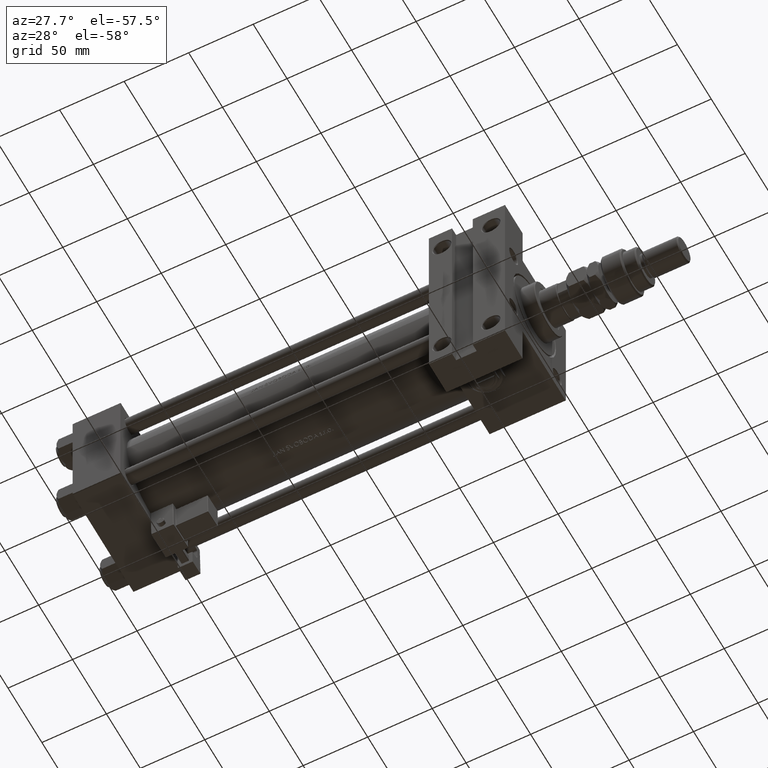
[diagram: clean part render]
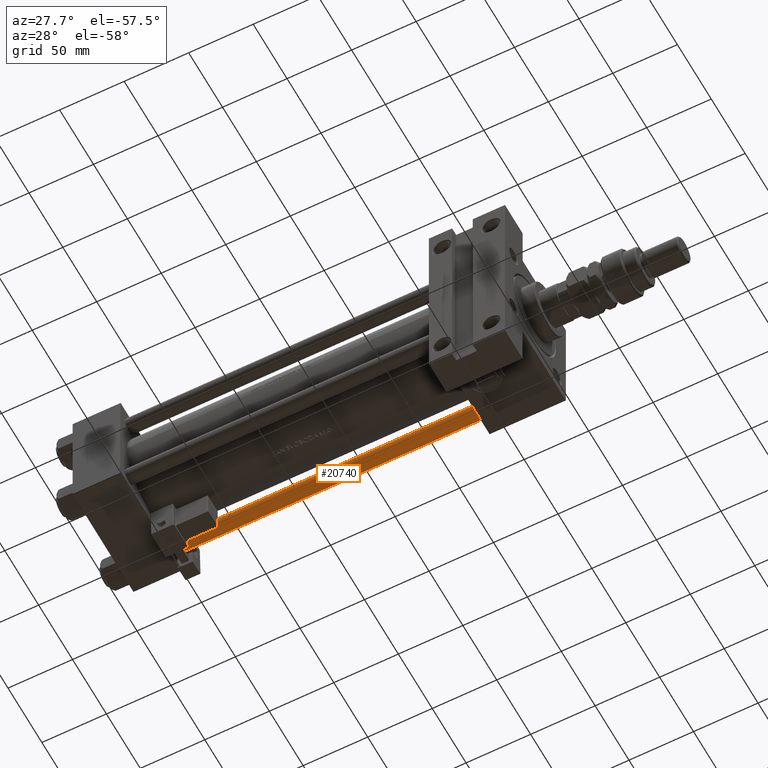
[diagram: same view with one face highlighted and labeled with its STEP entity id]
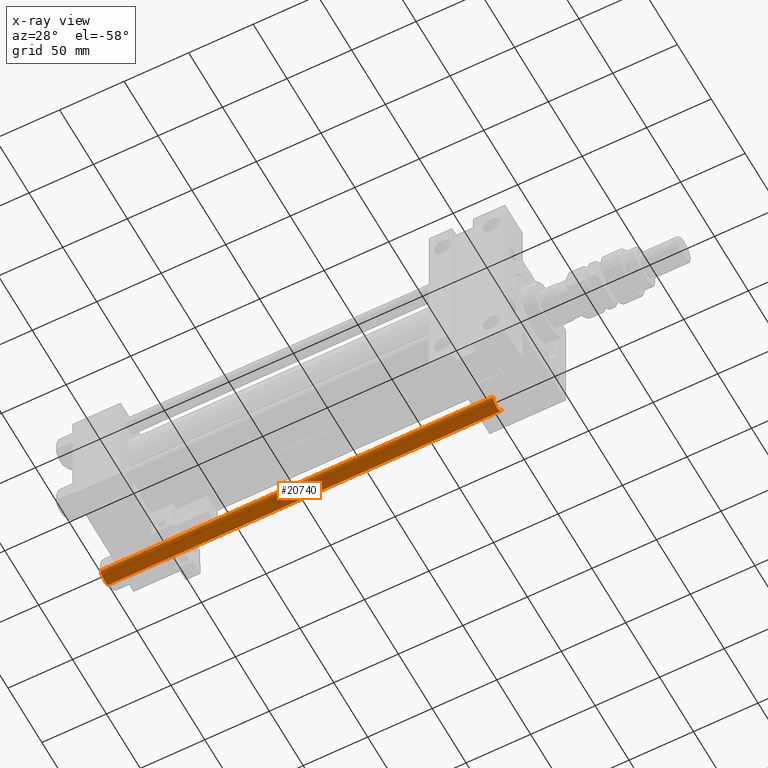
[diagram: x-ray of the same camera — body ghosted, the highlighted face saturated]
A machine part, auxiliary view. The second image highlights one B-rep face of the part: STEP entity #20740.
The next image is the same camera in x-ray: the body ghosted, the highlighted face saturated — about 0% of this face is hidden behind the body in this view.
In plain terms, the highlighted cylindrical surface (edge-blend (fillet) strip) has radius 6 mm, axis along (-1, -0, 0).
Its self-contained STEP definition (entity closure, byte-faithful):
#1722 = LINE ( 'NONE', #40596, #24269 ) ;
#2200 = ORIENTED_EDGE ( 'NONE', *, *, #39909, .T. ) ;
#7067 = VERTEX_POINT ( 'NONE', #46702 ) ;
#8290 = LINE ( 'NONE', #11888, #33200 ) ;
#8333 = FACE_OUTER_BOUND ( 'NONE', #25687, .T. ) ;
#11888 = CARTESIAN_POINT ( 'NONE',  ( 6.000000000000000888, 7.347880794884120722E-16, 305.0000000000000000 ) ) ;
#12722 = CARTESIAN_POINT ( 'NONE',  ( -6.000000000000000888, 0.000000000000000000, 304.5000000000000000 ) ) ;
#13773 = DIRECTION ( 'NONE',  ( -1.000000000000000000, 0.000000000000000000, 0.000000000000000000 ) ) ;
#14417 = VERTEX_POINT ( 'NONE', #33110 ) ;
#18293 = EDGE_CURVE ( 'NONE', #24531, #7067, #1722, .T. ) ;
#20187 = DIRECTION ( 'NONE',  ( -0.000000000000000000, -0.000000000000000000, -1.000000000000000000 ) ) ;
#20740 = ADVANCED_FACE ( 'NONE', ( #8333 ), #25179, .T. ) ;
#22438 = EDGE_CURVE ( 'NONE', #37914, #14417, #8290, .T. ) ;
#23485 = AXIS2_PLACEMENT_3D ( 'NONE', #51491, #34738, #13773 ) ;
#23966 = DIRECTION ( 'NONE',  ( 1.000000000000000000, 0.000000000000000000, 0.000000000000000000 ) ) ;
#24269 = VECTOR ( 'NONE', #52143, 1000.000000000000000 ) ;
#24531 = VERTEX_POINT ( 'NONE', #12722 ) ;
#25179 = CYLINDRICAL_SURFACE ( 'NONE', #23485, 6.000000000000000888 ) ;
#25687 = EDGE_LOOP ( 'NONE', ( #42523, #2200, #43676, #36733 ) ) ;
#27273 = DIRECTION ( 'NONE',  ( -0.000000000000000000, -0.000000000000000000, 1.000000000000000000 ) ) ;
#29643 = EDGE_CURVE ( 'NONE', #7067, #14417, #40584, .T. ) ;
#33110 = CARTESIAN_POINT ( 'NONE',  ( 6.000000000000000888, 7.347880794884120722E-16, 0.5000000000000004441 ) ) ;
#33200 = VECTOR ( 'NONE', #20187, 1000.000000000000000 ) ;
#34657 = CIRCLE ( 'NONE', #36435, 6.000000000000000888 ) ;
#34738 = DIRECTION ( 'NONE',  ( -0.000000000000000000, -0.000000000000000000, -1.000000000000000000 ) ) ;
#36435 = AXIS2_PLACEMENT_3D ( 'NONE', #47934, #53132, #23966 ) ;
#36733 = ORIENTED_EDGE ( 'NONE', *, *, #29643, .T. ) ;
#37745 = CARTESIAN_POINT ( 'NONE',  ( 6.000000000000000888, 7.347880794884120722E-16, 304.5000000000000000 ) ) ;
#37914 = VERTEX_POINT ( 'NONE', #37745 ) ;
#39909 = EDGE_CURVE ( 'NONE', #37914, #24531, #34657, .T. ) ;
#40584 = CIRCLE ( 'NONE', #41436, 6.000000000000000888 ) ;
#40596 = CARTESIAN_POINT ( 'NONE',  ( -6.000000000000000888, 0.000000000000000000, 305.0000000000000000 ) ) ;
#41436 = AXIS2_PLACEMENT_3D ( 'NONE', #52847, #27273, #48191 ) ;
#42523 = ORIENTED_EDGE ( 'NONE', *, *, #22438, .F. ) ;
#43676 = ORIENTED_EDGE ( 'NONE', *, *, #18293, .T. ) ;
#46702 = CARTESIAN_POINT ( 'NONE',  ( -6.000000000000000888, 0.000000000000000000, 0.5000000000000004441 ) ) ;
#47934 = CARTESIAN_POINT ( 'NONE',  ( 0.000000000000000000, 0.000000000000000000, 304.5000000000000000 ) ) ;
#48191 = DIRECTION ( 'NONE',  ( 1.000000000000000000, 0.000000000000000000, 0.000000000000000000 ) ) ;
#51491 = CARTESIAN_POINT ( 'NONE',  ( 0.000000000000000000, 0.000000000000000000, 305.0000000000000000 ) ) ;
#52143 = DIRECTION ( 'NONE',  ( -0.000000000000000000, -0.000000000000000000, -1.000000000000000000 ) ) ;
#52847 = CARTESIAN_POINT ( 'NONE',  ( 0.000000000000000000, 0.000000000000000000, 0.5000000000000004441 ) ) ;
#53132 = DIRECTION ( 'NONE',  ( 0.000000000000000000, 0.000000000000000000, -1.000000000000000000 ) ) ;